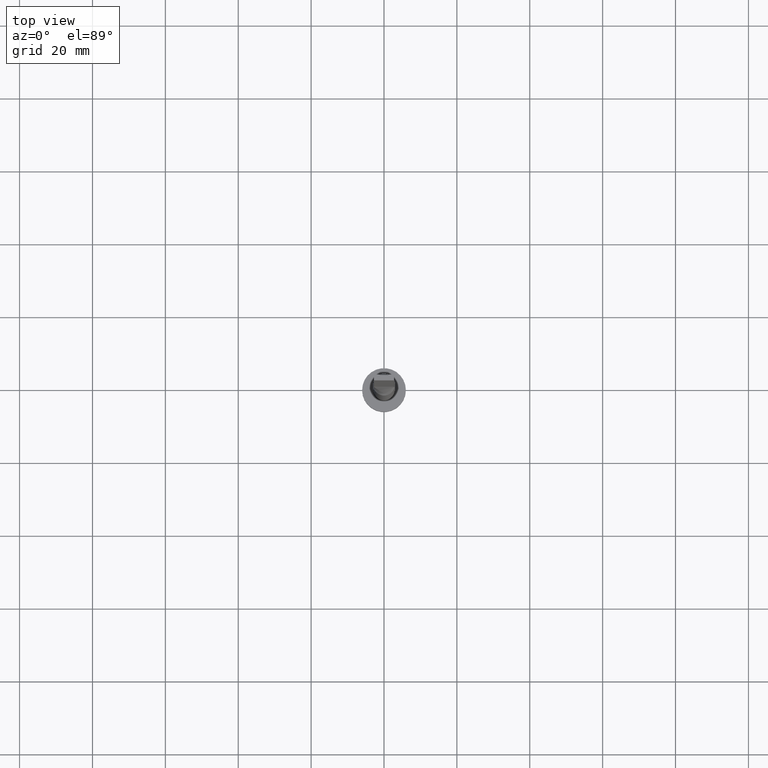
[diagram: clean part render]
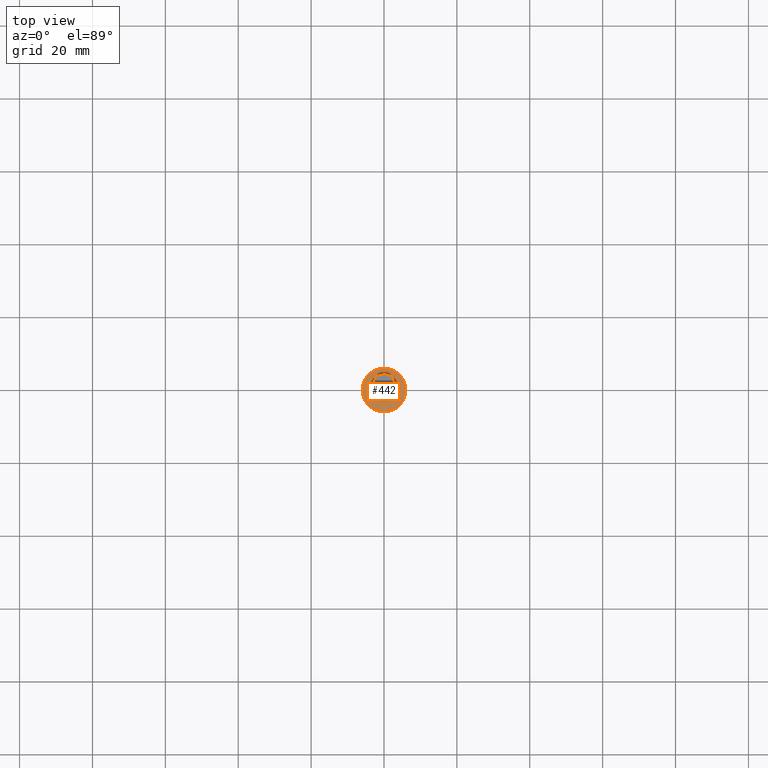
[diagram: same view with one face highlighted and labeled with its STEP entity id]
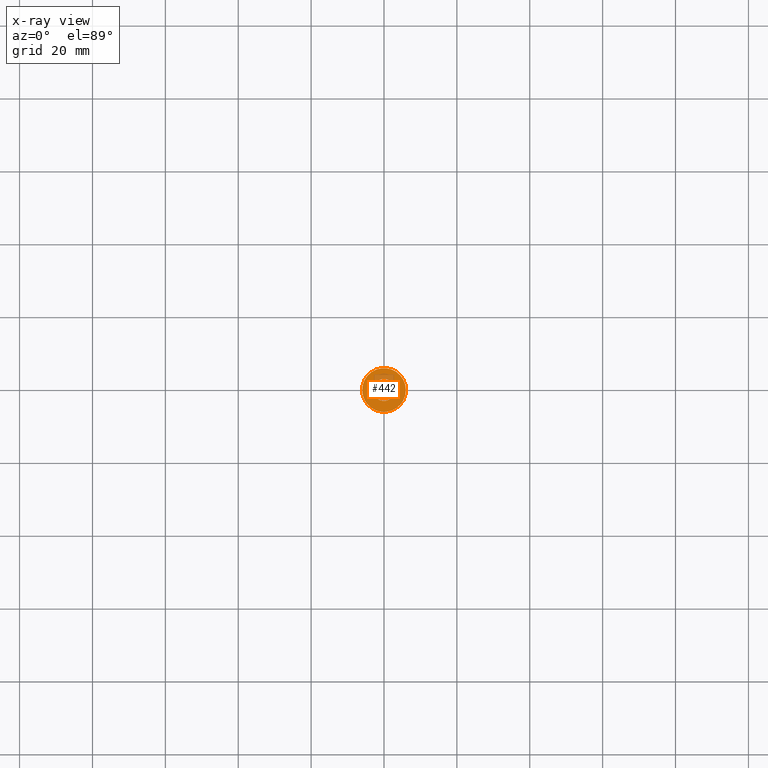
[diagram: x-ray of the same camera — body ghosted, the highlighted face saturated]
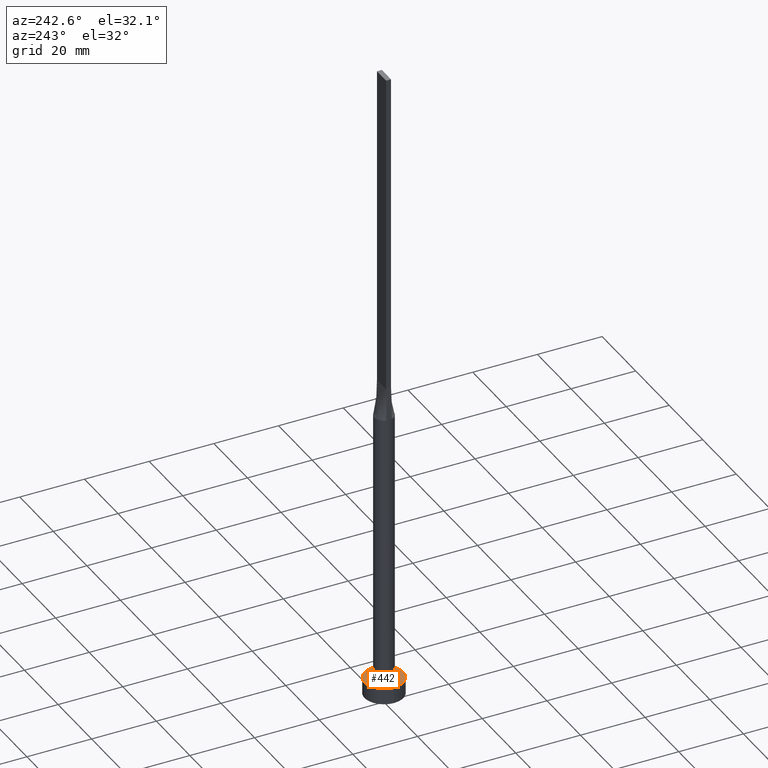
[diagram: same view with one face highlighted and labeled with its STEP entity id]
A machine part, top view. The second image highlights one B-rep face of the part: STEP entity #442.
The next image is the same camera in x-ray: the body ghosted, the highlighted face saturated — about 13% of this face is hidden behind the body in this view.
A second angle (auxiliary view) of the same face is appended — the face is thin or edge-on in the first view.
In plain terms, the highlighted planar face has unit normal (0, 0, 1).
Its self-contained STEP definition (entity closure, byte-faithful):
#40 = AXIS2_PLACEMENT_3D ( 'NONE', #387, #398, #173 ) ;
#48 = CARTESIAN_POINT ( 'NONE',  ( 0.000000000000000000, 0.000000000000000000, 5.000000000000000000 ) ) ;
#67 = FACE_OUTER_BOUND ( 'NONE', #401, .T. ) ;
#78 = AXIS2_PLACEMENT_3D ( 'NONE', #576, #350, #268 ) ;
#94 = DIRECTION ( 'NONE',  ( 1.000000000000000000, 0.000000000000000000, 0.000000000000000000 ) ) ;
#98 = EDGE_CURVE ( 'NONE', #185, #174, #246, .T. ) ;
#116 = FACE_BOUND ( 'NONE', #253, .T. ) ;
#148 = DIRECTION ( 'NONE',  ( 1.000000000000000000, 0.000000000000000000, 0.000000000000000000 ) ) ;
#162 = AXIS2_PLACEMENT_3D ( 'NONE', #337, #254, #346 ) ;
#173 = DIRECTION ( 'NONE',  ( 1.000000000000000000, 0.000000000000000000, 0.000000000000000000 ) ) ;
#174 = VERTEX_POINT ( 'NONE', #202 ) ;
#185 = VERTEX_POINT ( 'NONE', #205 ) ;
#202 = CARTESIAN_POINT ( 'NONE',  ( 3.000000000000000444, 3.673940397442060361E-16, 5.000000000000000000 ) ) ;
#204 = EDGE_CURVE ( 'NONE', #562, #359, #477, .T. ) ;
#205 = CARTESIAN_POINT ( 'NONE',  ( -3.000000000000000444, 0.000000000000000000, 5.000000000000000000 ) ) ;
#246 = CIRCLE ( 'NONE', #485, 3.000000000000000444 ) ;
#248 = EDGE_CURVE ( 'NONE', #359, #562, #260, .T. ) ;
#253 = EDGE_LOOP ( 'NONE', ( #433, #384 ) ) ;
#254 = DIRECTION ( 'NONE',  ( 0.000000000000000000, 0.000000000000000000, 1.000000000000000000 ) ) ;
#260 = CIRCLE ( 'NONE', #443, 6.000000000000000888 ) ;
#266 = CARTESIAN_POINT ( 'NONE',  ( 6.000000000000000888, 7.347880794884120722E-16, 5.000000000000000000 ) ) ;
#268 = DIRECTION ( 'NONE',  ( 1.000000000000000000, 0.000000000000000000, 0.000000000000000000 ) ) ;
#291 = ORIENTED_EDGE ( 'NONE', *, *, #248, .T. ) ;
#303 = ORIENTED_EDGE ( 'NONE', *, *, #204, .T. ) ;
#316 = CARTESIAN_POINT ( 'NONE',  ( 0.000000000000000000, 0.000000000000000000, 5.000000000000000000 ) ) ;
#337 = CARTESIAN_POINT ( 'NONE',  ( 0.000000000000000000, 0.000000000000000000, 5.000000000000000000 ) ) ;
#346 = DIRECTION ( 'NONE',  ( 1.000000000000000000, 0.000000000000000000, -0.000000000000000000 ) ) ;
#350 = DIRECTION ( 'NONE',  ( 0.000000000000000000, 0.000000000000000000, 1.000000000000000000 ) ) ;
#358 = DIRECTION ( 'NONE',  ( 0.000000000000000000, 0.000000000000000000, 1.000000000000000000 ) ) ;
#359 = VERTEX_POINT ( 'NONE', #266 ) ;
#384 = ORIENTED_EDGE ( 'NONE', *, *, #552, .F. ) ;
#387 = CARTESIAN_POINT ( 'NONE',  ( 0.000000000000000000, 0.000000000000000000, 5.000000000000000000 ) ) ;
#398 = DIRECTION ( 'NONE',  ( 0.000000000000000000, 0.000000000000000000, 1.000000000000000000 ) ) ;
#401 = EDGE_LOOP ( 'NONE', ( #303, #291 ) ) ;
#433 = ORIENTED_EDGE ( 'NONE', *, *, #98, .F. ) ;
#442 = ADVANCED_FACE ( 'NONE', ( #116, #67 ), #548, .T. ) ;
#443 = AXIS2_PLACEMENT_3D ( 'NONE', #48, #358, #148 ) ;
#477 = CIRCLE ( 'NONE', #40, 6.000000000000000888 ) ;
#485 = AXIS2_PLACEMENT_3D ( 'NONE', #316, #492, #94 ) ;
#487 = CARTESIAN_POINT ( 'NONE',  ( -6.000000000000000888, 0.000000000000000000, 5.000000000000000000 ) ) ;
#492 = DIRECTION ( 'NONE',  ( 0.000000000000000000, 0.000000000000000000, 1.000000000000000000 ) ) ;
#496 = CIRCLE ( 'NONE', #78, 3.000000000000000444 ) ;
#548 = PLANE ( 'NONE',  #162 ) ;
#552 = EDGE_CURVE ( 'NONE', #174, #185, #496, .T. ) ;
#562 = VERTEX_POINT ( 'NONE', #487 ) ;
#576 = CARTESIAN_POINT ( 'NONE',  ( 0.000000000000000000, 0.000000000000000000, 5.000000000000000000 ) ) ;